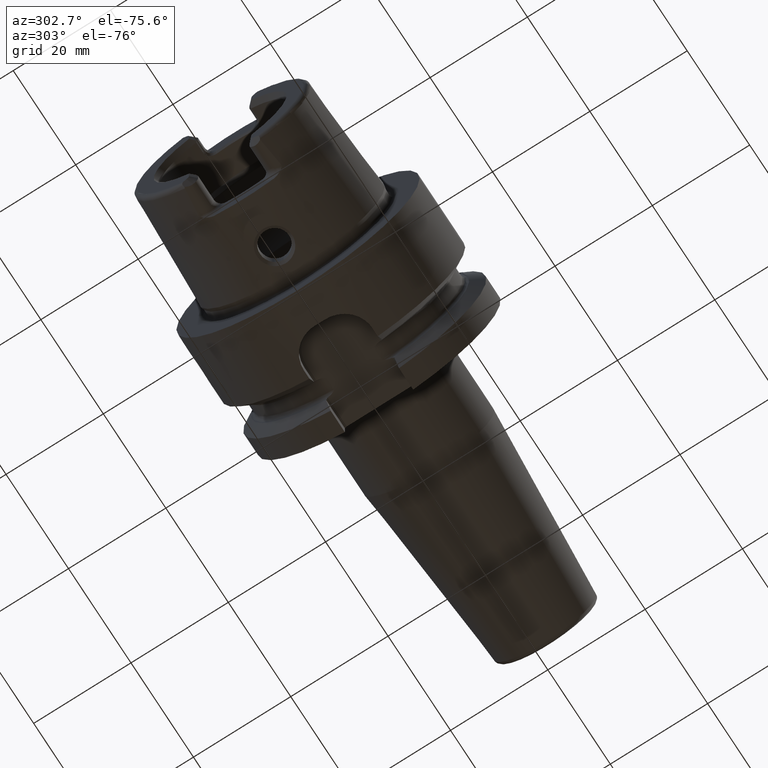
[diagram: clean part render]
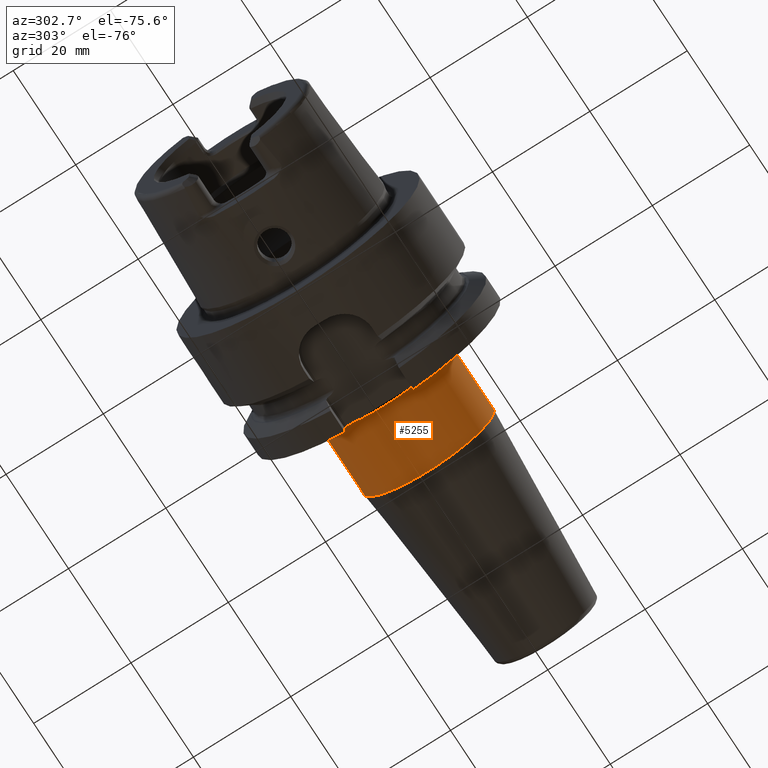
[diagram: same view with one face highlighted and labeled with its STEP entity id]
A machine part, auxiliary view. The second image highlights one B-rep face of the part: STEP entity #5255.
In plain terms, the highlighted cylindrical surface (partial cylindrical patch) has radius 13.5 mm, axis along (1, 0, 0).
Its self-contained STEP definition (entity closure, byte-faithful):
#1912=CARTESIAN_POINT('',(2.795E1,0.E0,0.E0));
#1913=DIRECTION('',(1.E0,0.E0,0.E0));
#1914=DIRECTION('',(0.E0,-1.E0,0.E0));
#1915=AXIS2_PLACEMENT_3D('',#1912,#1913,#1914);
#1917=DIRECTION('',(-1.E0,0.E0,-2.883734337038E-14));
#1918=VECTOR('',#1917,1.393138579148E1);
#1919=CARTESIAN_POINT('',(4.188138579148E1,-1.35E1,0.E0));
#1920=LINE('',#1919,#1918);
#1921=CARTESIAN_POINT('',(4.188138579148E1,0.E0,0.E0));
#1922=DIRECTION('',(-1.E0,0.E0,0.E0));
#1923=DIRECTION('',(0.E0,1.E0,0.E0));
#1924=AXIS2_PLACEMENT_3D('',#1921,#1922,#1923);
#1926=DIRECTION('',(-1.E0,0.E0,2.848666501800E-14));
#1927=VECTOR('',#1926,1.393138579148E1);
#1928=CARTESIAN_POINT('',(4.188138579148E1,1.35E1,0.E0));
#1929=LINE('',#1928,#1927);
#3218=CARTESIAN_POINT('',(4.188138579148E1,1.35E1,0.E0));
#3219=CARTESIAN_POINT('',(4.188138579148E1,-1.35E1,0.E0));
#3220=VERTEX_POINT('',#3218);
#3221=VERTEX_POINT('',#3219);
#3226=CARTESIAN_POINT('',(2.795E1,-1.35E1,0.E0));
#3227=CARTESIAN_POINT('',(2.795E1,1.35E1,0.E0));
#3228=VERTEX_POINT('',#3226);
#3229=VERTEX_POINT('',#3227);
#5243=CARTESIAN_POINT('',(2.32475E1,0.E0,0.E0));
#5244=DIRECTION('',(1.E0,0.E0,0.E0));
#5245=DIRECTION('',(0.E0,-1.E0,0.E0));
#5246=AXIS2_PLACEMENT_3D('',#5243,#5244,#5245);
#5247=CYLINDRICAL_SURFACE('',#5246,1.35E1);
#5248=ORIENTED_EDGE('',*,*,#5208,.F.);
#5249=ORIENTED_EDGE('',*,*,#5238,.F.);
#5251=ORIENTED_EDGE('',*,*,#5250,.F.);
#5252=ORIENTED_EDGE('',*,*,#5234,.T.);
#5253=EDGE_LOOP('',(#5248,#5249,#5251,#5252));
#5254=FACE_OUTER_BOUND('',#5253,.F.);
#5255=ADVANCED_FACE('',(#5254),#5247,.T.);
#1916=CIRCLE('',#1915,1.35E1);
#1925=CIRCLE('',#1924,1.35E1);
#5208=EDGE_CURVE('',#3228,#3229,#1916,.T.);
#5234=EDGE_CURVE('',#3220,#3229,#1929,.T.);
#5238=EDGE_CURVE('',#3221,#3228,#1920,.T.);
#5250=EDGE_CURVE('',#3220,#3221,#1925,.T.);